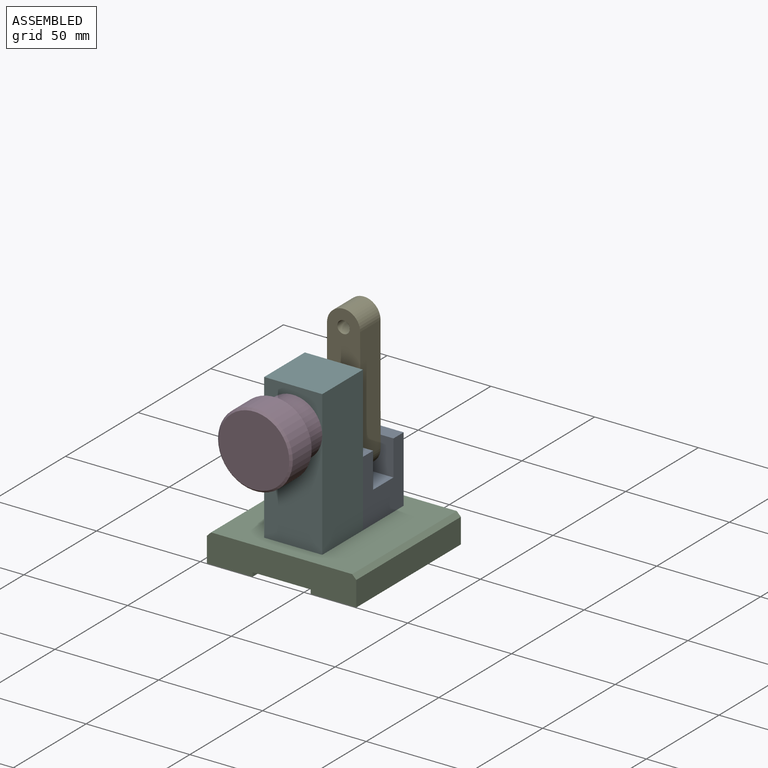
[diagram: assembled view]
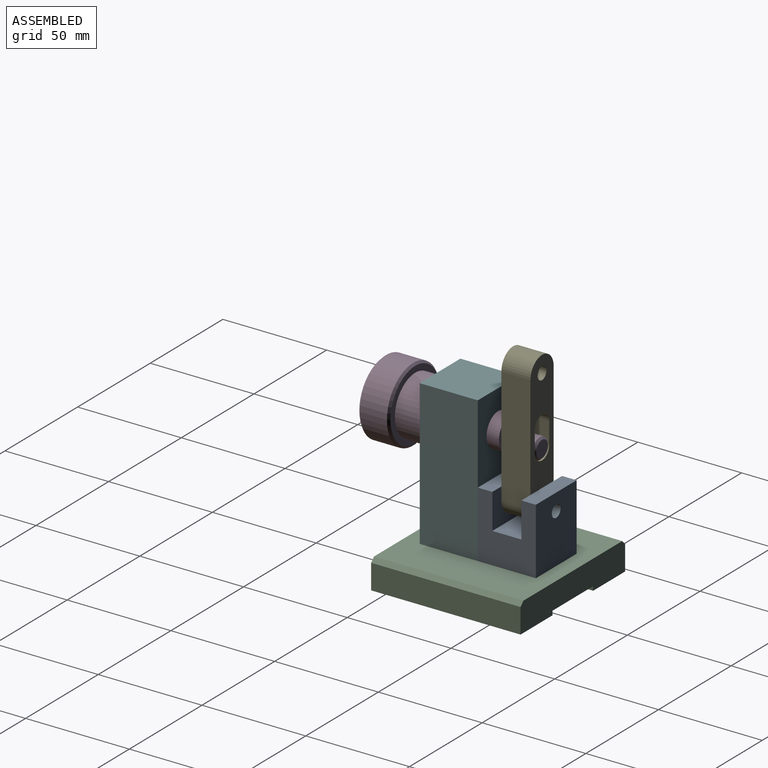
[diagram: assembled view, second angle]
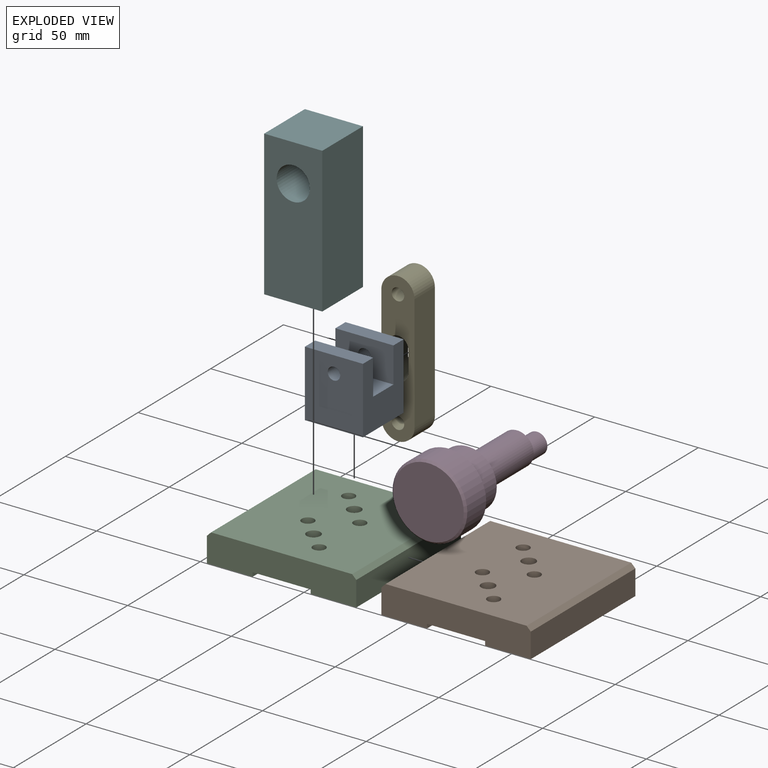
[diagram: exploded view]
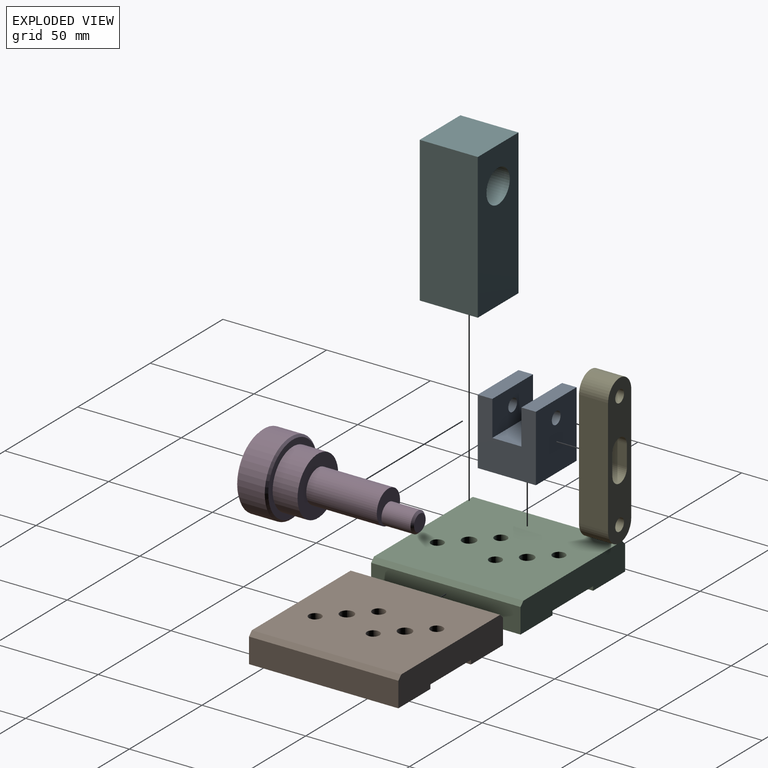
[diagram: exploded view, second angle]
ASSEMBLY  parts=6 mates=10
PART A: 18 faces, bbox 28x28x32 mm
  f0: plane 32x28mm, normal (-1,0,0), area 867.7mm2, adj f1,f7,f8,f9,f16
  f1: plane 28x28mm, normal (0,0,-1), area 707.8mm2, adj f0,f2,f8,f9,f11,f13,f15
  f2: plane 32x28mm, normal (1,0,0), area 867.7mm2, adj f1,f3,f8,f9,f17
  f3: plane 28x7mm, normal (0,0,1), area 196mm2, adj f2,f4,f8,f9
  f4: plane 28x17mm, normal (-1,0,0), area 447.7mm2, adj f3,f5,f8,f9,f17
  f5: plane 28x14mm, normal (0,0,1), area 392mm2, adj f4,f6,f8,f9
  f6: plane 28x17mm, normal (1,0,0), area 447.7mm2, adj f5,f7,f8,f9,f16
  f7: plane 28x7mm, normal (0,0,1), area 196mm2, adj f0,f6,f8,f9
  f8: plane 32x28mm, normal (0,1,0), area 658mm2, adj f0,f1,f2,f3,f4,f5,f6,f7
  f9: plane 32x28mm, normal (0,-1,0), area 658mm2, adj f0,f1,f2,f3,f4,f5,f6,f7
  f10: cone r=0mm half-angle=59deg, axis (0,0,-1), area 33mm2, adj f11
  f11: cylinder r=3mm len=12mm, axis (0,0,-1), area 226.2mm2, adj f1,f10
  f12: cone r=0mm half-angle=59deg, axis (0,0,-1), area 33mm2, adj f13
  f13: cylinder r=3mm len=12mm, axis (0,0,-1), area 226.2mm2, adj f1,f12
  f14: cone r=0mm half-angle=59deg, axis (0,0,-1), area 22.9mm2, adj f15
  f15: cylinder r=2.5mm len=13mm, axis (0,0,-1), area 204.2mm2, adj f1,f14
  f16: cylinder r=3mm len=7mm, axis (-1,0,0), area 131.9mm2, adj f0,f6
  f17: cylinder r=3mm len=7mm, axis (-1,0,0), area 131.9mm2, adj f2,f4
PART B: 22 faces, bbox 72x72x14 mm
  f0: plane 72x12mm, normal (-1,0,0), area 864mm2, adj f1,f8,f9,f10
  f1: plane 72x22mm, normal (0,0,-1), area 1584mm2, adj f0,f2,f8,f9
  f2: plane 72x2mm, normal (1,0,0), area 144mm2, adj f1,f3,f8,f9
  f3: plane 72x28mm, normal (0,0,-1), area 1712.8mm2, adj f2,f4,f8,f9,f14,f17,f18,f19
  f4: plane 72x2mm, normal (-1,0,0), area 144mm2, adj f3,f5,f8,f9
  f5: plane 72x22mm, normal (0,0,-1), area 1584mm2, adj f4,f6,f8,f9
  f6: plane 72x12mm, normal (1,0,0), area 864mm2, adj f5,f8,f9,f11
  f7: plane 72x68mm, normal (0,0,1), area 4714.5mm2, adj f8,f9,f10,f11,f12,f15,f18,f19
  f8: plane 72x14mm, normal (0,1,0), area 948mm2, adj f0,f1,f2,f3,f4,f5,f6,f7
  f9: plane 72x14mm, normal (0,-1,0), area 948mm2, adj f0,f1,f2,f3,f4,f5,f6,f7
  f10: plane 72x2mm, normal (-0.71,0,0.71), area 203.6mm2, adj f0,f7,f8,f9
  f11: plane 72x2mm, normal (0.71,0,0.71), area 203.6mm2, adj f6,f7,f8,f9
  f12: cylinder r=3.3mm len=6.6mm, axis (0,0,-1), area 114mm2, adj f7,f13
  f13: plane 11x11mm, normal (0,0,-1), area 60.8mm2, adj f12,f14
  f14: cylinder r=5.5mm len=11mm, axis (0,0,-1), area 224.6mm2, adj f3,f13
  f15: cylinder r=3.3mm len=6.6mm, axis (0,0,-1), area 114mm2, adj f7,f16
  f16: plane 11x11mm, normal (0,0,-1), area 60.8mm2, adj f15,f17
  f17: cylinder r=5.5mm len=11mm, axis (0,0,-1), area 224.6mm2, adj f3,f16
  f18: cylinder r=3mm len=12mm, axis (0,0,1), area 226.2mm2, adj f3,f7
  f19: cylinder r=3mm len=12mm, axis (0,0,1), area 226.2mm2, adj f3,f7
  f20: cylinder r=3mm len=12mm, axis (0,0,1), area 226.2mm2, adj f3,f7
  f21: cylinder r=3mm len=12mm, axis (0,0,1), area 226.2mm2, adj f3,f7
PART C: same geometry as B
PART D: 12 faces, bbox 76x36x36 mm
  f0: plane 8x8mm, normal (1,0,0), area 50.3mm2, adj f1
  f1: cone r=4mm half-angle=45deg, axis (-1,0,0), area 40mm2, adj f0
  f2: plane 16x16mm, normal (1,0,0), area 122.5mm2, adj f3,f11
  f3: cylinder r=8mm len=34mm, axis (1,0,0), area 1709mm2, adj f2,f4
  f4: plane 28x28mm, normal (1,0,0), area 414.7mm2, adj f3,f5
  f5: cylinder r=14mm len=28mm, axis (1,0,0), area 1055.6mm2, adj f4,f6
  f6: plane 34x34mm, normal (1,0,0), area 292.2mm2, adj f5,f7
  f7: cone r=17mm half-angle=45deg, axis (-1,0,0), area 155.5mm2, adj f6,f8
  f8: cylinder r=18mm len=36mm, axis (1,0,0), area 1470.3mm2, adj f7,f9
  f9: cone r=18mm half-angle=45deg, axis (1,0,0), area 155.5mm2, adj f8,f10
  f10: plane 34x34mm, normal (-1,0,0), area 907.9mm2, adj f9
  f11: cylinder r=5mm len=14mm, axis (1,0,0), area 439.8mm2, adj f2
PART E: 12 faces, bbox 72x14x16 mm
  f0: plane 56x14mm, normal (0,0,1), area 784mm2, adj f1,f9,f10,f11
  f1: cylinder r=8mm len=16mm, axis (0,-1,0), area 351.9mm2, adj f0,f2,f10,f11
  f2: plane 56x14mm, normal (0,0,-1), area 784mm2, adj f1,f9,f10,f11
  f3: cylinder r=5mm len=14mm, axis (0,-1,0), area 219.9mm2, adj f4,f6,f10,f11
  f4: plane 14x10mm, normal (0,0,-1), area 140mm2, adj f3,f5,f10,f11
  f5: cylinder r=5mm len=14mm, axis (0,-1,0), area 219.9mm2, adj f4,f6,f10,f11
  f6: plane 14x10mm, normal (0,0,1), area 140mm2, adj f3,f5,f10,f11
  f7: cylinder r=3mm len=14mm, axis (0,-1,0), area 263.9mm2, adj f10,f11
  f8: cylinder r=3mm len=14mm, axis (0,-1,0), area 263.9mm2, adj f10,f11
  f9: cylinder r=8mm len=16mm, axis (0,-1,0), area 351.9mm2, adj f0,f2,f10,f11
  f10: plane 72x16mm, normal (0,1,0), area 862mm2, adj f0,f1,f2,f3,f4,f5,f6,f7
  f11: plane 72x16mm, normal (0,-1,0), area 862mm2, adj f0,f1,f2,f3,f4,f5,f6,f7
PART F: 13 faces, bbox 28x28x70 mm
  f0: plane 70x28mm, normal (-1,0,0), area 1960mm2, adj f1,f3,f4,f5
  f1: plane 28x28mm, normal (0,0,-1), area 707.8mm2, adj f0,f2,f4,f5,f8,f10,f12
  f2: plane 70x28mm, normal (1,0,0), area 1960mm2, adj f1,f3,f4,f5
  f3: plane 28x28mm, normal (0,0,1), area 784mm2, adj f0,f2,f4,f5
  f4: plane 70x28mm, normal (0,1,0), area 1758.9mm2, adj f0,f1,f2,f3,f6
  f5: plane 70x28mm, normal (0,-1,0), area 1758.9mm2, adj f0,f1,f2,f3,f6
  f6: cylinder r=8mm len=28mm, axis (0,-1,0), area 1407.4mm2, adj f4,f5
  f7: cone r=0mm half-angle=59deg, axis (0,0,-1), area 33mm2, adj f8
  f8: cylinder r=3mm len=12mm, axis (0,0,-1), area 226.2mm2, adj f1,f7
  f9: cone r=0mm half-angle=59deg, axis (0,0,-1), area 33mm2, adj f10
  f10: cylinder r=3mm len=12mm, axis (0,0,-1), area 226.2mm2, adj f1,f9
  f11: cone r=0mm half-angle=59deg, axis (0,0,-1), area 22.9mm2, adj f12
  f12: cylinder r=2.5mm len=12mm, axis (0,0,-1), area 188.5mm2, adj f1,f11
PLACE A rot(axis=(0,0,-1),90deg) t=(27.94,60.08,18.8)mm
PLACE B t=(5.94,-3.92,4.8)mm
PLACE C t=(5.94,-3.92,4.8)mm fixed
PLACE D rot(axis=(-0.71,-0.71,0.03),177.1deg) t=(41.94,-22.92,70.8)mm
PLACE E rot(axis=(0,1,0),90deg) t=(33.71,39.08,108.81)mm
PLACE F rot(axis=(0,0,-1),0deg) t=(27.94,4.08,18.8)mm
MATE planar F.f11 <-> C.f7  axis (0,0,-1) through (41.94,18.08,18.8)mm
MATE planar A.f14 <-> C.f7  axis (0,0,-1) through (41.94,46.08,18.8)mm
MATE cylindrical F.f9 <-> C.f21  axis (0,0,-1) through (50.94,9.08,18.8)mm
MATE cylindrical E.f5 <-> D.f1  axis (0,-1,0) through (41.73,46.08,67.81)mm
MATE cylindrical F.f7 <-> C.f20  axis (0,0,-1) through (32.94,27.08,18.8)mm
MATE planar D.f11 <-> E.f10  axis (0,1,0) through (41.73,53.08,67.81)mm
MATE planar D.f3 <-> F.f5  axis (0,1,0) through (41.94,4.08,70.8)mm
MATE cylindrical A.f12 <-> C.f19  axis (0,0,-1) through (50.94,37.08,18.8)mm
MATE cylindrical A.f10 <-> C.f18  axis (0,0,-1) through (32.94,55.08,18.8)mm
MATE cylindrical D.f3 <-> F.f6  axis (0,1,0) through (41.94,21.08,70.8)mm
